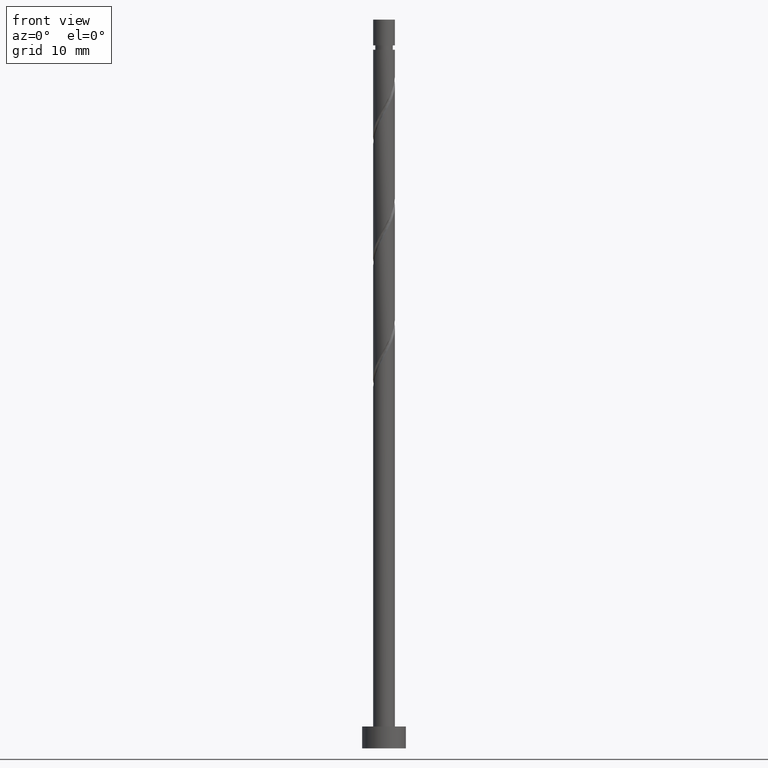
[diagram: clean part render]
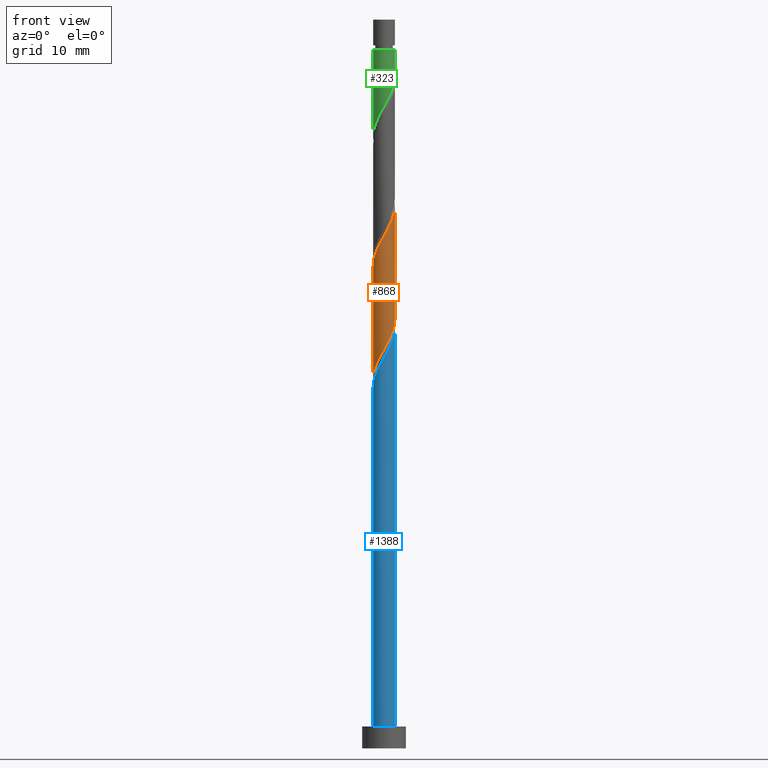
[diagram: same view with three faces highlighted in distinct colors, each labeled with its STEP entity id]
A machine part, front view with three faces highlighted in distinct colors.
Their STEP definitions:

[orange] entity #868 — the highlighted cylindrical surface (edge-blend (fillet) strip) has radius 1.5 mm, axis along (-0, -0, -1).
#7 = CARTESIAN_POINT ( 'NONE',  ( 1.492677119472045844, -0.3031010166390172289, 58.35740325723653399 ) ) ;
#104 = CARTESIAN_POINT ( 'NONE',  ( -0.2222749049616017381, -1.483439876309221361, 69.93147733131061727 ) ) ;
#120 = CARTESIAN_POINT ( 'NONE',  ( -1.500000000000002665, -0.2445815577306768573, 50.98484432459090954 ) ) ;
#126 = CARTESIAN_POINT ( 'NONE',  ( 1.500000000000000000, -0.01935251149803399878, 58.85424077162628009 ) ) ;
#133 = CARTESIAN_POINT ( 'NONE',  ( 0.4838453794137436148, -1.444246813430079435, 55.57962547945876253 ) ) ;
#140 = CARTESIAN_POINT ( 'NONE',  ( -1.173559165389829406, -0.9342156524751276114, 52.33888473871805047 ) ) ;
#166 = VERTEX_POINT ( 'NONE', #932 ) ;
#185 = CARTESIAN_POINT ( 'NONE',  ( 0.000000000000000000, 0.000000000000000000, 100.0000000000000000 ) ) ;
#196 = CARTESIAN_POINT ( 'NONE',  ( -0.4838453794137451136, -1.444246813430081655, 69.46851436834768379 ) ) ;
#227 = CARTESIAN_POINT ( 'NONE',  ( -1.500000000000000222, 1.599963317172324716E-14, 50.55492481222527346 ) ) ;
#261 = ORIENTED_EDGE ( 'NONE', *, *, #467, .T. ) ;
#301 = DIRECTION ( 'NONE',  ( -0.000000000000000000, -0.000000000000000000, -1.000000000000000000 ) ) ;
#315 = CARTESIAN_POINT ( 'NONE',  ( -1.500000000000002665, -3.111039783390612723E-15, 66.15988170224781584 ) ) ;
#333 = EDGE_LOOP ( 'NONE', ( #626, #618, #261, #1344 ) ) ;
#347 = CARTESIAN_POINT ( 'NONE',  ( -1.500000000000000222, 0.000000000000000000, 100.0000000000000000 ) ) ;
#352 = CARTESIAN_POINT ( 'NONE',  ( 0.2222749049616007666, -1.483439876309219363, 55.11666251649580772 ) ) ;
#355 =( BOUNDED_CURVE ( )  B_SPLINE_CURVE ( 2, ( #541, #1464, #865, #425, #1352, #1330, #658, #1129, #1013, #196, #104, #893, #1472, #1360, #1100, #513, #1108, #750, #1220, #643, #634 ),
 .UNSPECIFIED., .F., .T. ) 
 B_SPLINE_CURVE_WITH_KNOTS ( ( 3, 2, 2, 2, 2, 2, 2, 2, 2, 2, 3 ),
 ( 0.3045248053855295067, 0.3055555555555555802, 0.3194444444444444198, 0.3333333333333333703, 0.3472222222222222099, 0.3611111111111111605, 0.3750000000000000000, 0.3888888888888888395, 0.4027777777777777901, 0.4166666666666666297, 0.4295248053855287296 ),
 .UNSPECIFIED. ) 
 CURVE ( )  GEOMETRIC_REPRESENTATION_ITEM ( )  RATIONAL_B_SPLINE_CURVE ( ( 0.9071930855141268069, 0.9080659294509741963, 0.9090909090909138346, 0.8952797754656482976, 0.9090909090909138346, 0.8952797754656482976, 0.9090909090909138346, 0.8952797754656482976, 0.9090909090909138346, 0.8952797754656482976, 0.9090909090909138346, 0.8952797754656482976, 0.9090909090909138346, 0.8952797754656482976, 0.9090909090909138346, 0.8952797754656482976, 0.9090909090909138346, 0.8952797754656482976, 0.9090909090909138346, 0.8963047551055887130, 0.9071930855141254746 ) ) 
 REPRESENTATION_ITEM ( '' )  );
#359 = CARTESIAN_POINT ( 'NONE',  ( 1.395834070351430256, -0.5492242238340914184, 57.89444029427360050 ) ) ;
#376 = CARTESIAN_POINT ( 'NONE',  ( 1.500000000000000222, 1.836970198721029934E-16, 100.0000000000000000 ) ) ;
#425 = CARTESIAN_POINT ( 'NONE',  ( -1.492677119472048064, -0.3031010166390170069, 66.69073659056988390 ) ) ;
#433 = DIRECTION ( 'NONE',  ( -1.000000000000000000, 0.000000000000000000, 0.000000000000000000 ) ) ;
#467 = EDGE_CURVE ( 'NONE', #1303, #1310, #812, .T. ) ;
#513 = CARTESIAN_POINT ( 'NONE',  ( 1.008831740058302229, -1.141145796791064537, 72.24629214612545525 ) ) ;
#541 = CARTESIAN_POINT ( 'NONE',  ( -1.500000000000002665, -3.111039783390612328E-15, 66.15988170224781584 ) ) ;
#557 = CARTESIAN_POINT ( 'NONE',  ( -1.500000000000000222, 1.599963317172324716E-14, 50.55492481222527346 ) ) ;
#579 = CARTESIAN_POINT ( 'NONE',  ( -1.422305459129117988, -0.4764946809057883925, 51.41295881279209112 ) ) ;
#618 = ORIENTED_EDGE ( 'NONE', *, *, #940, .F. ) ;
#626 = ORIENTED_EDGE ( 'NONE', *, *, #745, .F. ) ;
#634 = CARTESIAN_POINT ( 'NONE',  ( 1.500000000000002442, -1.079340333013069849E-15, 74.49321503558111601 ) ) ;
#643 = CARTESIAN_POINT ( 'NONE',  ( 1.500000000000000222, -0.2445815577306926225, 74.06329552321547283 ) ) ;
#658 = CARTESIAN_POINT ( 'NONE',  ( -1.123809227997133675, -0.9935053190942124690, 68.07962547945876963 ) ) ;
#670 = CARTESIAN_POINT ( 'NONE',  ( 0.7162364070885967049, -1.317955010294668217, 56.04258844242173154 ) ) ;
#688 = CARTESIAN_POINT ( 'NONE',  ( 1.298991021230813780, -0.7953474310291673843, 57.43147733131062438 ) ) ;
#732 = VERTEX_POINT ( 'NONE', #843 ) ;
#745 = EDGE_CURVE ( 'NONE', #166, #732, #1072, .T. ) ;
#750 = CARTESIAN_POINT ( 'NONE',  ( 1.338286590721358804, -0.7272855081591945714, 73.17221807205135065 ) ) ;
#758 = FACE_OUTER_BOUND ( 'NONE', #333, .T. ) ;
#787 = AXIS2_PLACEMENT_3D ( 'NONE', #185, #301, #433 ) ;
#806 = CARTESIAN_POINT ( 'NONE',  ( -0.03929556949054307385, -1.522632939188359291, 54.65369955353283871 ) ) ;
#812 = LINE ( 'NONE', #347, #1136 ) ;
#837 = VECTOR ( 'NONE', #857, 1000.000000000000000 ) ;
#843 = CARTESIAN_POINT ( 'NONE',  ( 1.500000000000000000, 9.710328255480970146E-17, 58.88825814555863758 ) ) ;
#857 = DIRECTION ( 'NONE',  ( -0.000000000000000000, -0.000000000000000000, -1.000000000000000000 ) ) ;
#865 = CARTESIAN_POINT ( 'NONE',  ( -1.499500723504464617, -0.03869858149331600883, 66.22777362760692199 ) ) ;
#868 = ADVANCED_FACE ( 'NONE', ( #758 ), #1241, .T. ) ;
#893 = CARTESIAN_POINT ( 'NONE',  ( 0.03929556949054185955, -1.522632939188361956, 70.39444029427356497 ) ) ;
#921 = DIRECTION ( 'NONE',  ( -0.000000000000000000, -0.000000000000000000, -1.000000000000000000 ) ) ;
#931 = CARTESIAN_POINT ( 'NONE',  ( -1.008831740058301119, -1.141145796791062539, 52.80184770168098396 ) ) ;
#932 = CARTESIAN_POINT ( 'NONE',  ( 1.500000000000002442, -1.079340333013069849E-15, 74.49321503558111601 ) ) ;
#940 = EDGE_CURVE ( 'NONE', #1303, #166, #355, .T. ) ;
#1013 = CARTESIAN_POINT ( 'NONE',  ( -0.7162364070885982592, -1.317955010294669549, 69.00555140538469345 ) ) ;
#1033 = CARTESIAN_POINT ( 'NONE',  ( 1.499500723504462174, -0.03869858149331685537, 58.82036622019951722 ) ) ;
#1072 = LINE ( 'NONE', #376, #837 ) ;
#1100 = CARTESIAN_POINT ( 'NONE',  ( 0.7832643164158659133, -1.279256428801354151, 71.78332918316246491 ) ) ;
#1108 = CARTESIAN_POINT ( 'NONE',  ( 1.173559165389830294, -0.9342156524751292768, 72.70925510908840295 ) ) ;
#1129 = CARTESIAN_POINT ( 'NONE',  ( -0.9486274347634512383, -1.191663207159258331, 68.54258844242173154 ) ) ;
#1134 =( BOUNDED_CURVE ( )  B_SPLINE_CURVE ( 2, ( #1150, #126, #1033, #7, #359, #688, #1365, #1155, #670, #133, #352, #806, #1164, #1393, #1269, #931, #140, #1142, #579, #120, #557 ),
 .UNSPECIFIED., .F., .T. ) 
 B_SPLINE_CURVE_WITH_KNOTS ( ( 3, 2, 2, 2, 2, 2, 2, 2, 2, 2, 3 ),
 ( 0.8045248053855291737, 0.8055555555555555802, 0.8194444444444444198, 0.8333333333333333703, 0.8472222222222222099, 0.8611111111111111605, 0.8750000000000000000, 0.8888888888888888395, 0.9027777777777777901, 0.9166666666666666297, 0.9295248053855295067 ),
 .UNSPECIFIED. ) 
 CURVE ( )  GEOMETRIC_REPRESENTATION_ITEM ( )  RATIONAL_B_SPLINE_CURVE ( ( 0.9071930855141202565, 0.9080659294509678681, 0.9090909090909077284, 0.8952797754656424134, 0.9090909090909077284, 0.8952797754656424134, 0.9090909090909077284, 0.8952797754656424134, 0.9090909090909077284, 0.8952797754656424134, 0.9090909090909077284, 0.8952797754656424134, 0.9090909090909077284, 0.8952797754656424134, 0.9090909090909077284, 0.8952797754656424134, 0.9090909090909077284, 0.8952797754656424134, 0.9090909090909077284, 0.8963047551055820517, 0.9071930855141207006 ) ) 
 REPRESENTATION_ITEM ( '' )  );
#1136 = VECTOR ( 'NONE', #921, 1000.000000000000000 ) ;
#1142 = CARTESIAN_POINT ( 'NONE',  ( -1.338286590721356806, -0.7272855081591931281, 51.87592177575506014 ) ) ;
#1150 = CARTESIAN_POINT ( 'NONE',  ( 1.500000000000000000, 9.710328255480970146E-17, 58.88825814555863758 ) ) ;
#1155 = CARTESIAN_POINT ( 'NONE',  ( 0.9486274347634493509, -1.191663207159257221, 56.50555140538469345 ) ) ;
#1164 = CARTESIAN_POINT ( 'NONE',  ( -0.2984962311319862560, -1.470000000000000417, 54.19073659056986969 ) ) ;
#1170 = EDGE_CURVE ( 'NONE', #732, #1310, #1134, .T. ) ;
#1220 = CARTESIAN_POINT ( 'NONE',  ( 1.422305459129119987, -0.4764946809057903354, 73.63518103501432677 ) ) ;
#1241 = CYLINDRICAL_SURFACE ( 'NONE', #787, 1.500000000000000222 ) ;
#1269 = CARTESIAN_POINT ( 'NONE',  ( -0.7832643164158656912, -1.279256428801351486, 53.26481066464396008 ) ) ;
#1303 = VERTEX_POINT ( 'NONE', #315 ) ;
#1310 = VERTEX_POINT ( 'NONE', #227 ) ;
#1330 = CARTESIAN_POINT ( 'NONE',  ( -1.298991021230816889, -0.7953474310291671623, 67.61666251649579351 ) ) ;
#1344 = ORIENTED_EDGE ( 'NONE', *, *, #1170, .F. ) ;
#1352 = CARTESIAN_POINT ( 'NONE',  ( -1.395834070351432477, -0.5492242238340921956, 67.15369955353284581 ) ) ;
#1360 = CARTESIAN_POINT ( 'NONE',  ( 0.5576968927734298198, -1.417367060811643764, 71.32036622019948879 ) ) ;
#1365 = CARTESIAN_POINT ( 'NONE',  ( 1.123809227997131455, -0.9935053190942120249, 56.96851436834766247 ) ) ;
#1393 = CARTESIAN_POINT ( 'NONE',  ( -0.5576968927734298198, -1.417367060811640878, 53.72777362760691489 ) ) ;
#1464 = CARTESIAN_POINT ( 'NONE',  ( -1.500000000000002220, -0.01935251149803935214, 66.19389907618015911 ) ) ;
#1472 = CARTESIAN_POINT ( 'NONE',  ( 0.2984962311319860895, -1.470000000000002860, 70.85740325723652688 ) ) ;

[blue] entity #1388 — the highlighted cylindrical surface (edge-blend (fillet) strip) has radius 1.5 mm, axis along (-0, -0, -1).
#10 = CARTESIAN_POINT ( 'NONE',  ( 0.000000000000000000, 0.000000000000000000, 3.000000000000000000 ) ) ;
#29 = FACE_OUTER_BOUND ( 'NONE', #1020, .T. ) ;
#84 = CARTESIAN_POINT ( 'NONE',  ( 1.008831740058302229, -1.141145796791064537, 55.57962547945877674 ) ) ;
#94 = AXIS2_PLACEMENT_3D ( 'NONE', #468, #939, #245 ) ;
#99 = CARTESIAN_POINT ( 'NONE',  ( -1.492677119472048064, -0.3031010166390170069, 50.02406992390321250 ) ) ;
#105 = CARTESIAN_POINT ( 'NONE',  ( 1.500000000000002442, -1.079340333013069849E-15, 57.82654836891445171 ) ) ;
#127 = CARTESIAN_POINT ( 'NONE',  ( -1.500000000000000222, 0.000000000000000000, 100.0000000000000000 ) ) ;
#155 = EDGE_CURVE ( 'NONE', #1443, #458, #1381, .T. ) ;
#156 = CYLINDRICAL_SURFACE ( 'NONE', #94, 1.500000000000000222 ) ;
#197 = CARTESIAN_POINT ( 'NONE',  ( 0.03929556949054185955, -1.522632939188361956, 53.72777362760691489 ) ) ;
#208 = CARTESIAN_POINT ( 'NONE',  ( -1.298991021230816889, -0.7953474310291671623, 50.94999584982915053 ) ) ;
#245 = DIRECTION ( 'NONE',  ( -1.000000000000000000, 0.000000000000000000, 0.000000000000000000 ) ) ;
#248 = EDGE_CURVE ( 'NONE', #1443, #283, #486, .T. ) ;
#283 = VERTEX_POINT ( 'NONE', #652 ) ;
#298 = CIRCLE ( 'NONE', #1037, 1.500000000000000222 ) ;
#302 = CARTESIAN_POINT ( 'NONE',  ( 1.422305459129119987, -0.4764946809057903354, 56.96851436834764826 ) ) ;
#324 = CARTESIAN_POINT ( 'NONE',  ( 0.5576968927734298198, -1.417367060811643764, 54.65369955353284581 ) ) ;
#332 = VECTOR ( 'NONE', #1391, 1000.000000000000000 ) ;
#419 = CARTESIAN_POINT ( 'NONE',  ( -1.500000000000002442, 1.060666624829452762E-15, 49.49321503558111601 ) ) ;
#435 = CARTESIAN_POINT ( 'NONE',  ( -0.7162364070885982592, -1.317955010294669549, 52.33888473871802915 ) ) ;
#458 = VERTEX_POINT ( 'NONE', #1262 ) ;
#468 = CARTESIAN_POINT ( 'NONE',  ( 0.000000000000000000, 0.000000000000000000, 100.0000000000000000 ) ) ;
#486 =( BOUNDED_CURVE ( )  B_SPLINE_CURVE ( 2, ( #419, #1138, #1346, #99, #1227, #208, #895, #543, #435, #767, #1361, #197, #889, #324, #1000, #84, #1332, #659, #302, #1236, #105 ),
 .UNSPECIFIED., .F., .T. ) 
 B_SPLINE_CURVE_WITH_KNOTS ( ( 3, 2, 2, 2, 2, 2, 2, 2, 2, 2, 3 ),
 ( 0.05452480538552896550, 0.05555555555555558023, 0.06944444444444441977, 0.08333333333333337034, 0.09722222222222220989, 0.1111111111111111605, 0.1250000000000000000, 0.1388888888888888395, 0.1527777777777777901, 0.1666666666666666297, 0.1795248053855289516 ),
 .UNSPECIFIED. ) 
 CURVE ( )  GEOMETRIC_REPRESENTATION_ITEM ( )  RATIONAL_B_SPLINE_CURVE ( ( 0.9071930855141259187, 0.9080659294509736412, 0.9090909090909138346, 0.8952797754656482976, 0.9090909090909138346, 0.8952797754656482976, 0.9090909090909138346, 0.8952797754656482976, 0.9090909090909138346, 0.8952797754656482976, 0.9090909090909138346, 0.8952797754656482976, 0.9090909090909138346, 0.8952797754656482976, 0.9090909090909138346, 0.8952797754656482976, 0.9090909090909138346, 0.8952797754656482976, 0.9090909090909138346, 0.8963047551055884909, 0.9071930855141259187 ) ) 
 REPRESENTATION_ITEM ( '' )  );
#536 = EDGE_CURVE ( 'NONE', #283, #559, #929, .T. ) ;
#543 = CARTESIAN_POINT ( 'NONE',  ( -0.9486274347634512383, -1.191663207159258331, 51.87592177575507435 ) ) ;
#559 = VERTEX_POINT ( 'NONE', #1367 ) ;
#571 = ORIENTED_EDGE ( 'NONE', *, *, #536, .F. ) ;
#652 = CARTESIAN_POINT ( 'NONE',  ( 1.500000000000002442, -1.079340333013069849E-15, 57.82654836891445171 ) ) ;
#659 = CARTESIAN_POINT ( 'NONE',  ( 1.338286590721358804, -0.7272855081591945714, 56.50555140538470056 ) ) ;
#701 = ORIENTED_EDGE ( 'NONE', *, *, #155, .T. ) ;
#767 = CARTESIAN_POINT ( 'NONE',  ( -0.4838453794137451136, -1.444246813430081655, 52.80184770168096264 ) ) ;
#795 = ORIENTED_EDGE ( 'NONE', *, *, #1291, .T. ) ;
#796 = CARTESIAN_POINT ( 'NONE',  ( 1.500000000000000222, 1.836970198721029934E-16, 100.0000000000000000 ) ) ;
#888 = DIRECTION ( 'NONE',  ( 1.000000000000000000, 0.000000000000000000, 0.000000000000000000 ) ) ;
#889 = CARTESIAN_POINT ( 'NONE',  ( 0.2984962311319860895, -1.470000000000002860, 54.19073659056989101 ) ) ;
#895 = CARTESIAN_POINT ( 'NONE',  ( -1.123809227997133675, -0.9935053190942124690, 51.41295881279210533 ) ) ;
#929 = LINE ( 'NONE', #796, #332 ) ;
#939 = DIRECTION ( 'NONE',  ( -0.000000000000000000, -0.000000000000000000, -1.000000000000000000 ) ) ;
#1000 = CARTESIAN_POINT ( 'NONE',  ( 0.7832643164158659133, -1.279256428801354151, 55.11666251649580062 ) ) ;
#1020 = EDGE_LOOP ( 'NONE', ( #571, #1413, #701, #795 ) ) ;
#1037 = AXIS2_PLACEMENT_3D ( 'NONE', #10, #1261, #888 ) ;
#1047 = DIRECTION ( 'NONE',  ( -0.000000000000000000, -0.000000000000000000, -1.000000000000000000 ) ) ;
#1138 = CARTESIAN_POINT ( 'NONE',  ( -1.500000000000002665, -0.01935251149802918319, 49.52723240951346639 ) ) ;
#1227 = CARTESIAN_POINT ( 'NONE',  ( -1.395834070351432477, -0.5492242238340921956, 50.48703288686618151 ) ) ;
#1236 = CARTESIAN_POINT ( 'NONE',  ( 1.500000000000001776, -0.2445815577306886257, 57.39662885654883695 ) ) ;
#1261 = DIRECTION ( 'NONE',  ( 0.000000000000000000, 0.000000000000000000, 1.000000000000000000 ) ) ;
#1262 = CARTESIAN_POINT ( 'NONE',  ( -1.500000000000000222, 0.000000000000000000, 3.000000000000000000 ) ) ;
#1272 = VECTOR ( 'NONE', #1047, 1000.000000000000000 ) ;
#1291 = EDGE_CURVE ( 'NONE', #458, #559, #298, .T. ) ;
#1332 = CARTESIAN_POINT ( 'NONE',  ( 1.173559165389830294, -0.9342156524751292768, 56.04258844242172444 ) ) ;
#1336 = CARTESIAN_POINT ( 'NONE',  ( -1.500000000000002442, 1.060666624829452762E-15, 49.49321503558111601 ) ) ;
#1346 = CARTESIAN_POINT ( 'NONE',  ( -1.499500723504464617, -0.03869858149331600883, 49.56110696094024348 ) ) ;
#1361 = CARTESIAN_POINT ( 'NONE',  ( -0.2222749049616017381, -1.483439876309221361, 53.26481066464396008 ) ) ;
#1367 = CARTESIAN_POINT ( 'NONE',  ( 1.500000000000000222, 1.836970198721029934E-16, 3.000000000000000000 ) ) ;
#1381 = LINE ( 'NONE', #127, #1272 ) ;
#1388 = ADVANCED_FACE ( 'NONE', ( #29 ), #156, .T. ) ;
#1391 = DIRECTION ( 'NONE',  ( -0.000000000000000000, -0.000000000000000000, -1.000000000000000000 ) ) ;
#1413 = ORIENTED_EDGE ( 'NONE', *, *, #248, .F. ) ;
#1443 = VERTEX_POINT ( 'NONE', #1336 ) ;

[green] entity #323 — the highlighted cylindrical surface (edge-blend (fillet) strip) has radius 1.5 mm, axis along (-0, -0, -1).
#13 = VERTEX_POINT ( 'NONE', #1219 ) ;
#115 = LINE ( 'NONE', #1222, #690 ) ;
#177 = EDGE_LOOP ( 'NONE', ( #300, #1183, #1207, #998 ) ) ;
#212 = EDGE_CURVE ( 'NONE', #916, #1094, #1116, .T. ) ;
#270 = CARTESIAN_POINT ( 'NONE',  ( 1.500000000000000222, 2.614319145706415381E-16, 92.22159147889199460 ) ) ;
#285 = CARTESIAN_POINT ( 'NONE',  ( -0.7832643164158656912, -1.279256428801351486, 86.59814399797728868 ) ) ;
#291 = CARTESIAN_POINT ( 'NONE',  ( 1.123809227997131455, -0.9935053190942120249, 90.30184770168101238 ) ) ;
#300 = ORIENTED_EDGE ( 'NONE', *, *, #212, .F. ) ;
#316 = CARTESIAN_POINT ( 'NONE',  ( 0.000000000000000000, 0.000000000000000000, 100.0000000000000000 ) ) ;
#323 = ADVANCED_FACE ( 'NONE', ( #1008 ), #782, .T. ) ;
#344 = CARTESIAN_POINT ( 'NONE',  ( -1.500000000000002665, -0.2445815577306769129, 84.31817765792426655 ) ) ;
#361 = EDGE_CURVE ( 'NONE', #13, #756, #115, .T. ) ;
#392 = CARTESIAN_POINT ( 'NONE',  ( 1.298991021230813780, -0.7953474310291673843, 90.76481066464393166 ) ) ;
#404 = CARTESIAN_POINT ( 'NONE',  ( 1.500000000000000666, 1.836970198721030427E-16, 95.85740325723654109 ) ) ;
#485 = EDGE_CURVE ( 'NONE', #916, #13, #964, .T. ) ;
#520 = AXIS2_PLACEMENT_3D ( 'NONE', #912, #1168, #902 ) ;
#606 = CARTESIAN_POINT ( 'NONE',  ( 1.499500723504462174, -0.03869858149331685537, 92.15369955353284581 ) ) ;
#690 = VECTOR ( 'NONE', #987, 1000.000000000000000 ) ;
#726 = CARTESIAN_POINT ( 'NONE',  ( 1.500000000000000222, -0.01935251149802870441, 92.18757410495962290 ) ) ;
#734 = CARTESIAN_POINT ( 'NONE',  ( 0.2222749049616007666, -1.483439876309219363, 88.44999584982915053 ) ) ;
#741 = CARTESIAN_POINT ( 'NONE',  ( -1.008831740058301119, -1.141145796791062539, 86.13518103501429835 ) ) ;
#751 = CARTESIAN_POINT ( 'NONE',  ( -1.173559165389829406, -0.9342156524751276114, 85.67221807205140749 ) ) ;
#756 = VERTEX_POINT ( 'NONE', #833 ) ;
#762 = AXIS2_PLACEMENT_3D ( 'NONE', #316, #775, #1249 ) ;
#775 = DIRECTION ( 'NONE',  ( -0.000000000000000000, -0.000000000000000000, -1.000000000000000000 ) ) ;
#782 = CYLINDRICAL_SURFACE ( 'NONE', #762, 1.500000000000000222 ) ;
#815 = CARTESIAN_POINT ( 'NONE',  ( -1.422305459129117988, -0.4764946809057883925, 84.74629214612544104 ) ) ;
#816 =( BOUNDED_CURVE ( )  B_SPLINE_CURVE ( 2, ( #270, #726, #606, #1082, #1426, #392, #291, #853, #858, #1312, #734, #977, #1437, #1322, #285, #741, #751, #1380, #815, #344, #900 ),
 .UNSPECIFIED., .F., .T. ) 
 B_SPLINE_CURVE_WITH_KNOTS ( ( 3, 2, 2, 2, 2, 2, 2, 2, 2, 2, 3 ),
 ( 0.3045248053855288961, 0.3055555555555555802, 0.3194444444444444198, 0.3333333333333333148, 0.3472222222222222099, 0.3611111111111111049, 0.3750000000000000000, 0.3888888888888888951, 0.4027777777777777901, 0.4166666666666666852, 0.4295248053855295067 ),
 .UNSPECIFIED. ) 
 CURVE ( )  GEOMETRIC_REPRESENTATION_ITEM ( )  RATIONAL_B_SPLINE_CURVE ( ( 0.9071930855141195904, 0.9080659294509674240, 0.9090909090909077284, 0.8952797754656424134, 0.9090909090909077284, 0.8952797754656424134, 0.9090909090909077284, 0.8952797754656424134, 0.9090909090909077284, 0.8952797754656424134, 0.9090909090909077284, 0.8952797754656424134, 0.9090909090909077284, 0.8952797754656424134, 0.9090909090909077284, 0.8952797754656424134, 0.9090909090909077284, 0.8952797754656424134, 0.9090909090909077284, 0.8963047551055820517, 0.9071930855141207006 ) ) 
 REPRESENTATION_ITEM ( '' )  );
#833 = CARTESIAN_POINT ( 'NONE',  ( -1.500000000000000222, 1.793049459790926770E-14, 83.88825814555860916 ) ) ;
#834 = CARTESIAN_POINT ( 'NONE',  ( 1.500000000000000222, 2.614319145706415381E-16, 92.22159147889199460 ) ) ;
#853 = CARTESIAN_POINT ( 'NONE',  ( 0.9486274347634493509, -1.191663207159257221, 89.83888473871800784 ) ) ;
#858 = CARTESIAN_POINT ( 'NONE',  ( 0.7162364070885967049, -1.317955010294668217, 89.37592177575508856 ) ) ;
#900 = CARTESIAN_POINT ( 'NONE',  ( -1.500000000000000222, 1.793049459790926770E-14, 83.88825814555860916 ) ) ;
#902 = DIRECTION ( 'NONE',  ( -1.000000000000000000, 0.000000000000000000, 0.000000000000000000 ) ) ;
#912 = CARTESIAN_POINT ( 'NONE',  ( 0.000000000000000000, 0.000000000000000000, 95.85740325723654109 ) ) ;
#916 = VERTEX_POINT ( 'NONE', #404 ) ;
#964 = CIRCLE ( 'NONE', #520, 1.500000000000000666 ) ;
#977 = CARTESIAN_POINT ( 'NONE',  ( -0.03929556949054307385, -1.522632939188359291, 87.98703288686616020 ) ) ;
#987 = DIRECTION ( 'NONE',  ( -0.000000000000000000, -0.000000000000000000, -1.000000000000000000 ) ) ;
#998 = ORIENTED_EDGE ( 'NONE', *, *, #1126, .F. ) ;
#1008 = FACE_OUTER_BOUND ( 'NONE', #177, .T. ) ;
#1082 = CARTESIAN_POINT ( 'NONE',  ( 1.492677119472045844, -0.3031010166390172289, 91.69073659056986969 ) ) ;
#1094 = VERTEX_POINT ( 'NONE', #834 ) ;
#1116 = LINE ( 'NONE', #1473, #1327 ) ;
#1126 = EDGE_CURVE ( 'NONE', #1094, #756, #816, .T. ) ;
#1168 = DIRECTION ( 'NONE',  ( -0.000000000000000000, -0.000000000000000000, -1.000000000000000000 ) ) ;
#1183 = ORIENTED_EDGE ( 'NONE', *, *, #485, .T. ) ;
#1207 = ORIENTED_EDGE ( 'NONE', *, *, #361, .T. ) ;
#1219 = CARTESIAN_POINT ( 'NONE',  ( -1.500000000000000666, 0.000000000000000000, 95.85740325723654109 ) ) ;
#1222 = CARTESIAN_POINT ( 'NONE',  ( -1.500000000000000222, 0.000000000000000000, 100.0000000000000000 ) ) ;
#1249 = DIRECTION ( 'NONE',  ( -1.000000000000000000, 0.000000000000000000, 0.000000000000000000 ) ) ;
#1312 = CARTESIAN_POINT ( 'NONE',  ( 0.4838453794137436148, -1.444246813430079435, 88.91295881279205560 ) ) ;
#1322 = CARTESIAN_POINT ( 'NONE',  ( -0.5576968927734298198, -1.417367060811640878, 87.06110696094022217 ) ) ;
#1327 = VECTOR ( 'NONE', #1458, 1000.000000000000000 ) ;
#1380 = CARTESIAN_POINT ( 'NONE',  ( -1.338286590721356806, -0.7272855081591931281, 85.20925510908841716 ) ) ;
#1426 = CARTESIAN_POINT ( 'NONE',  ( 1.395834070351430256, -0.5492242238340914184, 91.22777362760692199 ) ) ;
#1437 = CARTESIAN_POINT ( 'NONE',  ( -0.2984962311319862560, -1.470000000000000417, 87.52406992390322671 ) ) ;
#1458 = DIRECTION ( 'NONE',  ( -0.000000000000000000, -0.000000000000000000, -1.000000000000000000 ) ) ;
#1473 = CARTESIAN_POINT ( 'NONE',  ( 1.500000000000000222, 1.836970198721029934E-16, 100.0000000000000000 ) ) ;